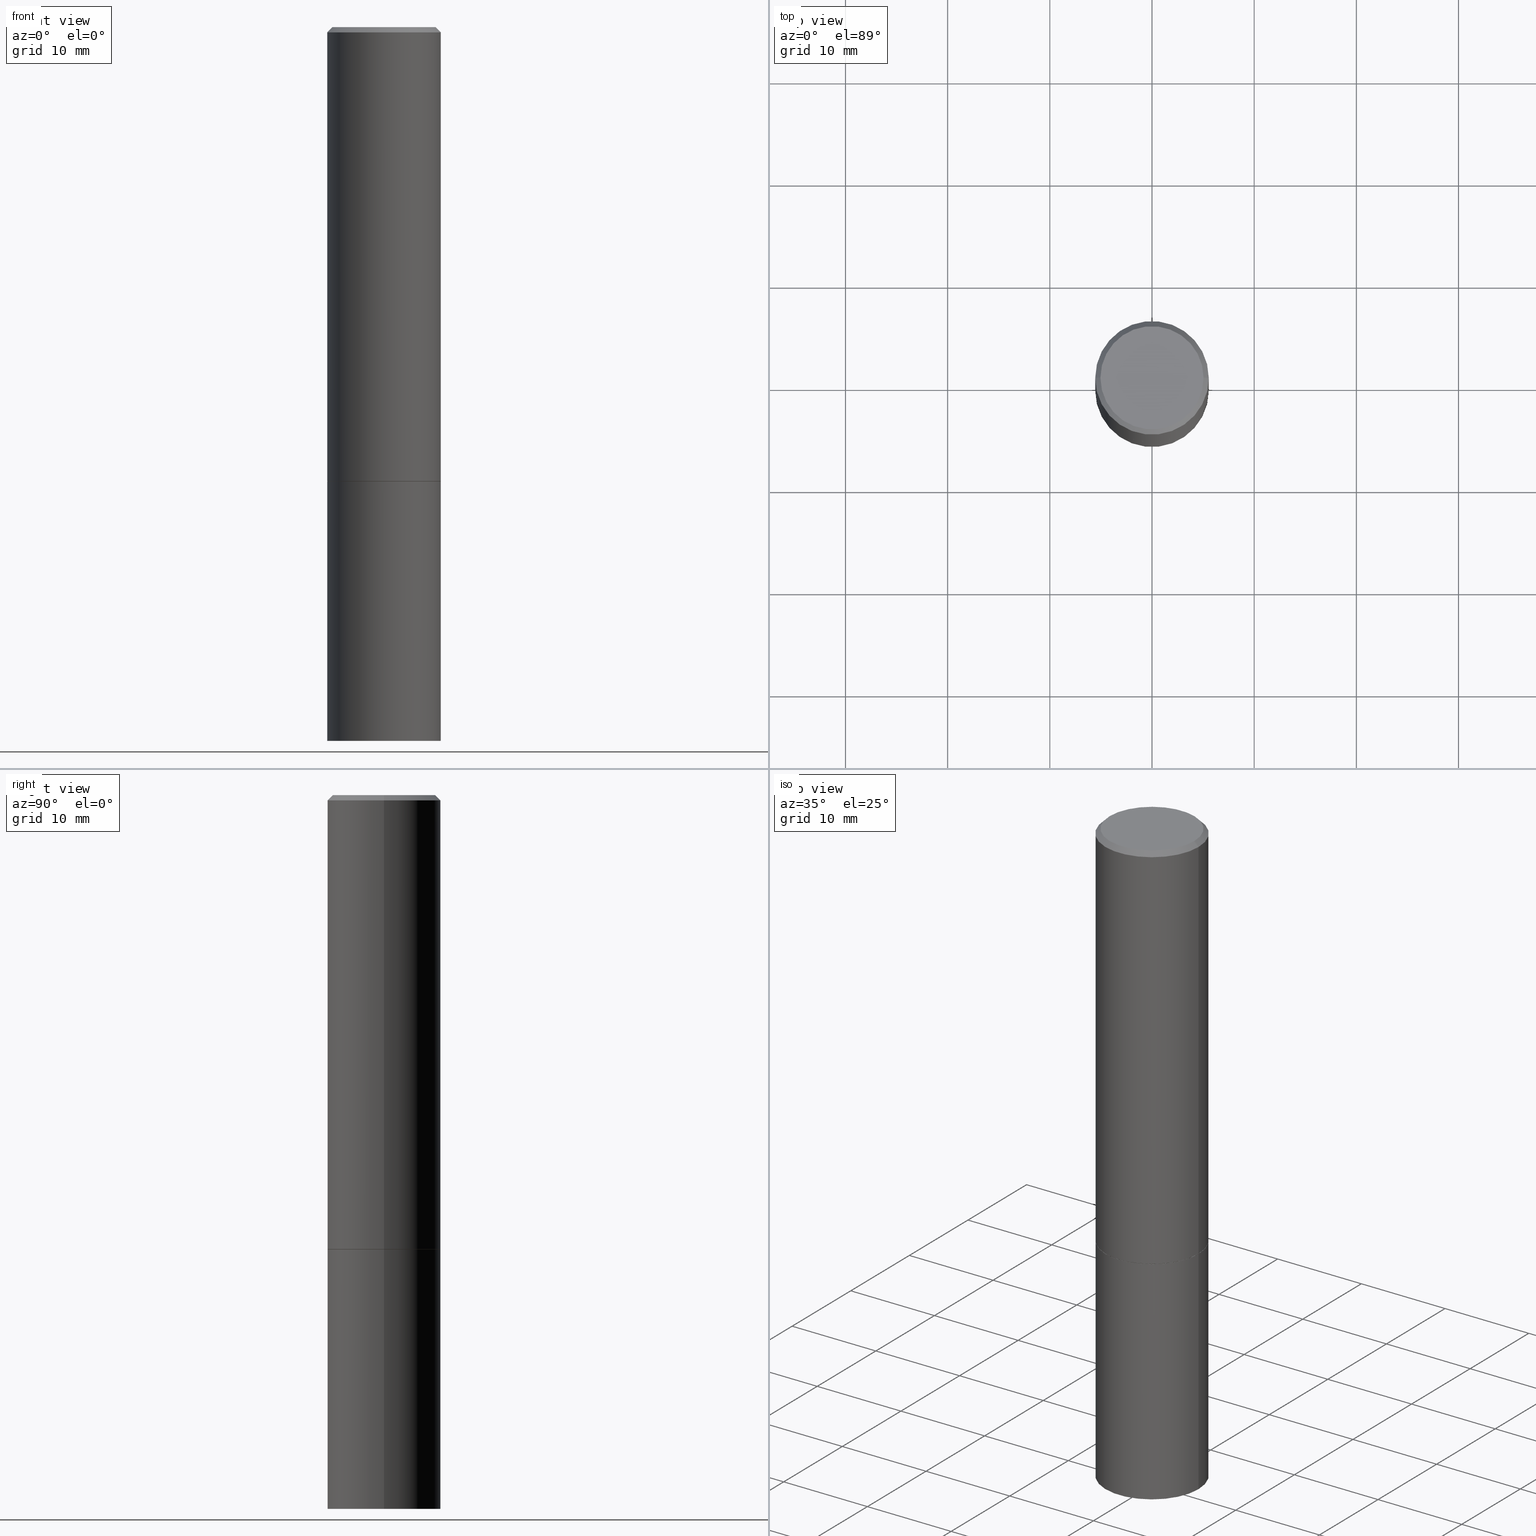
[diagram: canonical four-view strip — front | top / right | iso, engineering-drawing reading convention]
A machine part, canonical four-view strip (front | top / right | iso — engineering-drawing reading convention). The complete STEP part file that produces these views, byte-faithful:
ISO-10303-21;
HEADER;
FILE_DESCRIPTION (( 'STEP AP203' ),
    '1' );
FILE_NAME ('35487.STEP',
    '2024-02-27T18:49:43',
    ( '' ),
    ( '' ),
    'SwSTEP 2.0',
    'SolidWorks 2023',
    '' );
FILE_SCHEMA (( 'CONFIG_CONTROL_DESIGN' ));
ENDSEC;

DATA;
#1 = EDGE_CURVE ( 'NONE', #198, #201, #238, .T. ) ;
#2 = DIRECTION ( 'NONE',  ( 1.000000000000000000, -6.982962677686266711E-15, 0.000000000000000000 ) ) ;
#3 = DIRECTION ( 'NONE',  ( 0.000000000000000000, 0.000000000000000000, 1.000000000000000000 ) ) ;
#4 = DIRECTION ( 'NONE',  ( -2.445468806185136597E-29, 3.491481338843145583E-15, 1.000000000000000000 ) ) ;
#5 = PRODUCT_DEFINITION_FORMATION_WITH_SPECIFIED_SOURCE ( 'ANY', '', #168, .NOT_KNOWN. ) ;
#6 = CC_DESIGN_APPROVAL ( #297, ( #5 ) ) ;
#7 = DIRECTION ( 'NONE',  ( 1.000000000000000000, -6.982962677686266711E-15, 0.000000000000000000 ) ) ;
#8 = FACE_OUTER_BOUND ( 'NONE', #43, .T. ) ;
#9 = EDGE_CURVE ( 'NONE', #114, #78, #146, .T. ) ;
#10 = LINE ( 'NONE', #132, #239 ) ;
#11 = VECTOR ( 'NONE', #241, 39.37007874015748143 ) ;
#12 = EDGE_CURVE ( 'NONE', #106, #19, #165, .T. ) ;
#13 = CC_DESIGN_DATE_AND_TIME_ASSIGNMENT ( #28, #35, ( #24 ) ) ;
#14 = AXIS2_PLACEMENT_3D ( 'NONE', #98, #36, #237 ) ;
#15 = EDGE_LOOP ( 'NONE', ( #190, #91, #109, #60 ) ) ;
#16 = EDGE_CURVE ( 'NONE', #53, #221, #323, .T. ) ;
#17 = FACE_OUTER_BOUND ( 'NONE', #15, .T. ) ;
#18 = FACE_OUTER_BOUND ( 'NONE', #294, .T. ) ;
#19 = VERTEX_POINT ( 'NONE', #116 ) ;
#20 = DIRECTION ( 'NONE',  ( 1.000000000000000000, -6.982962677686262766E-15, 0.000000000000000000 ) ) ;
#21 = CLOSED_SHELL ( 'NONE', ( #219, #61, #187, #361 ) ) ;
#22 = APPROVAL_DATE_TIME ( #278, #242 ) ;
#23 = AXIS2_PLACEMENT_3D ( 'NONE', #69, #4, #343 ) ;
#24 = SECURITY_CLASSIFICATION ( '', '', #303 ) ;
#25 = VERTEX_POINT ( 'NONE', #57 ) ;
#26 = SHAPE_DEFINITION_REPRESENTATION ( #108, #115 ) ;
#27 = ORIENTED_EDGE ( 'NONE', *, *, #182, .F. ) ;
#28 = DATE_AND_TIME ( #312, #202 ) ;
#29 = APPROVAL_ROLE ( '' ) ;
#30 = LINE ( 'NONE', #345, #314 ) ;
#31 = PERSON_AND_ORGANIZATION ( #307, #295 ) ;
#32 = AXIS2_PLACEMENT_3D ( 'NONE', #184, #185, #181 ) ;
#33 = EDGE_CURVE ( 'NONE', #201, #304, #176, .T. ) ;
#34 = CARTESIAN_POINT ( 'NONE',  ( 1.527523085743937699E-15, 0.2187499999999903966, -2.750000000000000444 ) ) ;
#35 = DATE_TIME_ROLE ( 'classification_date' ) ;
#36 = DIRECTION ( 'NONE',  ( -2.445468806185136597E-29, 3.491481338843145583E-15, 1.000000000000000000 ) ) ;
#37 = CARTESIAN_POINT ( 'NONE',  ( 0.2177499999999999991, -7.630632466041687922E-15, -1.749999999999999556 ) ) ;
#38 = AXIS2_PLACEMENT_3D ( 'NONE', #317, #131, #155 ) ;
#39 = FACE_OUTER_BOUND ( 'NONE', #273, .T. ) ;
#40 = CYLINDRICAL_SURFACE ( 'NONE', #223, 0.2187499999999998890 ) ;
#41 = LENGTH_MEASURE_WITH_UNIT ( LENGTH_MEASURE( 0.02539999999999999897 ), #171 );
#42 = ADVANCED_FACE ( 'NONE', ( #366 ), #208, .F. ) ;
#43 = EDGE_LOOP ( 'NONE', ( #234, #204 ) ) ;
#44 = PRODUCT_RELATED_PRODUCT_CATEGORY ( 'detail', '', ( #168 ) ) ;
#45 = DIRECTION ( 'NONE',  ( 2.445468806185136597E-29, -3.491481338843145583E-15, -1.000000000000000000 ) ) ;
#46 = VECTOR ( 'NONE', #291, 39.37007874015748143 ) ;
#47 = LOCAL_TIME ( 13, 49, 43.00000000000000000, #58 ) ;
#48 = DATE_AND_TIME ( #325, #324 ) ;
#49 = CARTESIAN_POINT ( 'NONE',  ( -0.1987499999999997879, 1.422778645578575107E-15, -9.827974342635073886E-30 ) ) ;
#50 = ORIENTED_EDGE ( 'NONE', *, *, #251, .T. ) ;
#51 = FACE_OUTER_BOUND ( 'NONE', #229, .T. ) ;
#52 = DIRECTION ( 'NONE',  ( 0.7071067811866199593, -2.468850131083015945E-15, 0.7071067811864750752 ) ) ;
#53 = VERTEX_POINT ( 'NONE', #318 ) ;
#54 = CALENDAR_DATE ( 2024, 27, 2 ) ;
#55 = APPROVAL_PERSON_ORGANIZATION ( #330, #297, #63 ) ;
#56 = CC_DESIGN_PERSON_AND_ORGANIZATION_ASSIGNMENT ( #281, #358, ( #5 ) ) ;
#57 = CARTESIAN_POINT ( 'NONE',  ( -0.2187500000000000000, -1.533903009731541155E-15, -1.748999999999999888 ) ) ;
#58 = COORDINATED_UNIVERSAL_TIME_OFFSET ( 5, 0, .BEHIND. ) ;
#59 = PERSON_AND_ORGANIZATION ( #307, #295 ) ;
#60 = ORIENTED_EDGE ( 'NONE', *, *, #154, .F. ) ;
#61 = ADVANCED_FACE ( 'NONE', ( #8 ), #62, .T. ) ;
#62 = PLANE ( 'NONE',  #191 ) ;
#63 = APPROVAL_ROLE ( '' ) ;
#64 = FACE_OUTER_BOUND ( 'NONE', #85, .T. ) ;
#65 = CARTESIAN_POINT ( 'NONE',  ( 0.2187500000000000000, -7.634123947380530929E-15, -1.748999999999999888 ) ) ;
#66 = EDGE_CURVE ( 'NONE', #221, #53, #157, .T. ) ;
#67 = CARTESIAN_POINT ( 'NONE',  ( 4.279570410823988484E-29, -6.110092342975504671E-15, -1.750000000000000000 ) ) ;
#68 = CIRCLE ( 'NONE', #111, 0.2187499999999997780 ) ;
#69 = CARTESIAN_POINT ( 'NONE',  ( 4.279570410823988484E-29, -6.110092342975503093E-15, -1.749999999999999556 ) ) ;
#70 = CARTESIAN_POINT ( 'NONE',  ( 0.000000000000000000, 0.000000000000000000, 0.000000000000000000 ) ) ;
#71 = VECTOR ( 'NONE', #52, 39.37007874015748143 ) ;
#72 = AXIS2_PLACEMENT_3D ( 'NONE', #268, #352, #110 ) ;
#73 = CARTESIAN_POINT ( 'NONE',  ( 4.279570410823988484E-29, -6.110092342975503093E-15, -1.749999999999999556 ) ) ;
#74 = EDGE_CURVE ( 'NONE', #19, #106, #269, .T. ) ;
#75 = ORIENTED_EDGE ( 'NONE', *, *, #127, .F. ) ;
#76 =( NAMED_UNIT ( * ) SI_UNIT ( $, .STERADIAN. ) SOLID_ANGLE_UNIT ( ) );
#77 = CIRCLE ( 'NONE', #250, 0.2177499999999999991 ) ;
#78 = VERTEX_POINT ( 'NONE', #65 ) ;
#79 = APPROVAL_PERSON_ORGANIZATION ( #148, #242, #334 ) ;
#80 = DIRECTION ( 'NONE',  ( -2.445468806185136877E-29, 3.491481338843145188E-15, 1.000000000000000000 ) ) ;
#81 = ORIENTED_EDGE ( 'NONE', *, *, #102, .T. ) ;
#82 = EDGE_CURVE ( 'NONE', #25, #78, #264, .T. ) ;
#83 =( NAMED_UNIT ( * ) PLANE_ANGLE_UNIT ( ) SI_UNIT ( $, .RADIAN. ) );
#84 = CARTESIAN_POINT ( 'NONE',  ( 0.000000000000000000, 0.000000000000000000, 0.000000000000000000 ) ) ;
#85 = EDGE_LOOP ( 'NONE', ( #310, #354, #105, #138 ) ) ;
#86 = CLOSED_SHELL ( 'NONE', ( #141, #159, #316, #137, #199, #149, #169, #42 ) ) ;
#87 = AXIS2_PLACEMENT_3D ( 'NONE', #126, #152, #287 ) ;
#88 = AXIS2_PLACEMENT_3D ( 'NONE', #299, #347, #104 ) ;
#89 = PERSON_AND_ORGANIZATION ( #307, #295 ) ;
#90 = EDGE_CURVE ( 'NONE', #198, #145, #288, .T. ) ;
#91 = ORIENTED_EDGE ( 'NONE', *, *, #82, .T. ) ;
#92 = APPROVAL_STATUS ( 'not_yet_approved' ) ;
#93 = CARTESIAN_POINT ( 'NONE',  ( 4.890937612370287172E-31, -6.982962677686310098E-17, -0.02000000000000005593 ) ) ;
#94 = APPROVAL ( #178, 'UNSPECIFIED' ) ;
#95 = CARTESIAN_POINT ( 'NONE',  ( -0.2187500000000000000, -6.301520777921857714E-15, -1.750000000000000000 ) ) ;
#96 = FACE_OUTER_BOUND ( 'NONE', #224, .T. ) ;
#97 = PERSON_AND_ORGANIZATION_ROLE ( 'creator' ) ;
#98 = CARTESIAN_POINT ( 'NONE',  ( 4.890937612370287172E-31, -6.982962677686310098E-17, -0.02000000000000005593 ) ) ;
#99 = DIRECTION ( 'NONE',  ( 1.000000000000000000, -6.982962677686265922E-15, 4.876176775795935793E-29 ) ) ;
#100 = AXIS2_PLACEMENT_3D ( 'NONE', #140, #320, #113 ) ;
#101 = CARTESIAN_POINT ( 'NONE',  ( 4.277124942017804002E-29, -6.106600861636660875E-15, -1.748999999999999888 ) ) ;
#102 = EDGE_CURVE ( 'NONE', #145, #304, #68, .T. ) ;
#103 = EDGE_LOOP ( 'NONE', ( #245, #282 ) ) ;
#104 = DIRECTION ( 'NONE',  ( -1.000000000000000000, 6.982962677686265922E-15, -4.876176775795935793E-29 ) ) ;
#105 = ORIENTED_EDGE ( 'NONE', *, *, #9, .T. ) ;
#106 = VERTEX_POINT ( 'NONE', #95 ) ;
#107 = AXIS2_PLACEMENT_3D ( 'NONE', #279, #170, #20 ) ;
#108 = PRODUCT_DEFINITION_SHAPE ( 'NONE', 'NONE',  #217 ) ;
#109 = ORIENTED_EDGE ( 'NONE', *, *, #267, .T. ) ;
#110 = DIRECTION ( 'NONE',  ( 1.000000000000000000, -6.982962677686266711E-15, 4.876176775795935232E-29 ) ) ;
#111 = AXIS2_PLACEMENT_3D ( 'NONE', #93, #339, #289 ) ;
#112 = EDGE_LOOP ( 'NONE', ( #194, #350, #326, #254 ) ) ;
#113 = DIRECTION ( 'NONE',  ( 1.000000000000000000, -6.982962677686266711E-15, 4.876176775795936353E-29 ) ) ;
#114 = VERTEX_POINT ( 'NONE', #37 ) ;
#115 = ADVANCED_BREP_SHAPE_REPRESENTATION ( '35487', ( #351, #124, #129 ), #276 ) ;
#116 = CARTESIAN_POINT ( 'NONE',  ( 0.2187500000000000000, -7.637615428719375514E-15, -1.750000000000000000 ) ) ;
#117 = PERSON_AND_ORGANIZATION_ROLE ( 'classification_officer' ) ;
#118 = ORIENTED_EDGE ( 'NONE', *, *, #216, .T. ) ;
#119 = AXIS2_PLACEMENT_3D ( 'NONE', #84, #147, #277 ) ;
#120 = AXIS2_PLACEMENT_3D ( 'NONE', #192, #45, #195 ) ;
#121 = COORDINATED_UNIVERSAL_TIME_OFFSET ( 5, 0, .BEHIND. ) ;
#122 = DATE_AND_TIME ( #365, #144 ) ;
#123 = DIRECTION ( 'NONE',  ( -2.445468806185136597E-29, 3.491481338843145583E-15, 1.000000000000000000 ) ) ;
#124 = MANIFOLD_SOLID_BREP ( 'Body-Move/Copy2[2]', #86 ) ;
#125 = CARTESIAN_POINT ( 'NONE',  ( 4.279570410823988484E-29, -6.110092342975503093E-15, -1.749999999999999556 ) ) ;
#126 = CARTESIAN_POINT ( 'NONE',  ( 6.725039217009124520E-29, -9.601573681818649859E-15, -2.750000000000000000 ) ) ;
#127 = EDGE_CURVE ( 'NONE', #53, #19, #30, .T. ) ;
#128 = AXIS2_PLACEMENT_3D ( 'NONE', #308, #172, #275 ) ;
#129 = AXIS2_PLACEMENT_3D ( 'NONE', #359, #3, #286 ) ;
#130 = DIRECTION ( 'NONE',  ( 2.438088387897960049E-29, -3.491481338843145188E-15, -1.000000000000000000 ) ) ;
#131 = DIRECTION ( 'NONE',  ( -2.445468806185136597E-29, 3.491481338843145583E-15, 1.000000000000000000 ) ) ;
#132 = CARTESIAN_POINT ( 'NONE',  ( -0.2177499999999999991, -4.562885535857884945E-15, -1.749999999999999556 ) ) ;
#133 = AXIS2_PLACEMENT_3D ( 'NONE', #183, #123, #7 ) ;
#134 = CC_DESIGN_SECURITY_CLASSIFICATION ( #24, ( #5 ) ) ;
#135 = DIRECTION ( 'NONE',  ( -2.445468806185136597E-29, 3.491481338843145583E-15, 1.000000000000000000 ) ) ;
#136 = EDGE_LOOP ( 'NONE', ( #300, #50, #196, #75 ) ) ;
#137 = ADVANCED_FACE ( 'NONE', ( #265 ), #193, .T. ) ;
#138 = ORIENTED_EDGE ( 'NONE', *, *, #82, .F. ) ;
#139 = ORIENTED_EDGE ( 'NONE', *, *, #1, .F. ) ;
#140 = CARTESIAN_POINT ( 'NONE',  ( 0.000000000000000000, 0.000000000000000000, 0.000000000000000000 ) ) ;
#141 = ADVANCED_FACE ( 'NONE', ( #340 ), #319, .T. ) ;
#142 = ORIENTED_EDGE ( 'NONE', *, *, #280, .T. ) ;
#143 = DIRECTION ( 'NONE',  ( 1.000000000000000000, -6.982962677686267499E-15, 0.000000000000000000 ) ) ;
#144 = LOCAL_TIME ( 13, 49, 43.00000000000000000, #259 ) ;
#145 = VERTEX_POINT ( 'NONE', #315 ) ;
#146 = LINE ( 'NONE', #360, #71 ) ;
#147 = DIRECTION ( 'NONE',  ( -2.445468806185136597E-29, 3.491481338843145583E-15, 1.000000000000000000 ) ) ;
#148 = PERSON_AND_ORGANIZATION ( #307, #295 ) ;
#149 = ADVANCED_FACE ( 'NONE', ( #64 ), #162, .T. ) ;
#150 = DIRECTION ( 'NONE',  ( 0.7071067811865464625, -7.319954787623252890E-15, -0.7071067811865486830 ) ) ;
#151 = AXIS2_PLACEMENT_3D ( 'NONE', #125, #284, #2 ) ;
#152 = DIRECTION ( 'NONE',  ( -2.445468806185136597E-29, 3.491481338843145583E-15, 1.000000000000000000 ) ) ;
#153 = MECHANICAL_CONTEXT ( 'NONE', #226, 'mechanical' ) ;
#154 = EDGE_CURVE ( 'NONE', #304, #145, #246, .T. ) ;
#155 = DIRECTION ( 'NONE',  ( 1.000000000000000000, -6.982962677686266711E-15, 4.876176775795935793E-29 ) ) ;
#156 = CARTESIAN_POINT ( 'NONE',  ( 0.2187499999999997780, -1.570563563789384053E-15, -0.02000000000000005593 ) ) ;
#157 = CIRCLE ( 'NONE', #87, 0.2187500000000000000 ) ;
#158 = DIRECTION ( 'NONE',  ( 2.438088387897960049E-29, -3.491481338843145188E-15, -1.000000000000000000 ) ) ;
#159 = ADVANCED_FACE ( 'NONE', ( #313 ), #209, .T. ) ;
#160 = CARTESIAN_POINT ( 'NONE',  ( -0.2187500000000000000, 1.554312234475219157E-15, -1.076017050993260622E-29 ) ) ;
#161 = LINE ( 'NONE', #346, #298 ) ;
#162 = CONICAL_SURFACE ( 'NONE', #133, 0.2177499999999999991, 0.7853981633975507526 ) ;
#163 = EDGE_LOOP ( 'NONE', ( #336, #142, #329, #215 ) ) ;
#164 = CC_DESIGN_PERSON_AND_ORGANIZATION_ASSIGNMENT ( #89, #203, ( #168 ) ) ;
#165 = CIRCLE ( 'NONE', #128, 0.2187500000000000000 ) ;
#166 = CYLINDRICAL_SURFACE ( 'NONE', #327, 0.2187500000000000000 ) ;
#167 = VECTOR ( 'NONE', #293, 39.37007874015748143 ) ;
#168 = PRODUCT ( '35487', '35487', '', ( #153 ) ) ;
#169 = ADVANCED_FACE ( 'NONE', ( #39 ), #186, .F. ) ;
#170 = DIRECTION ( 'NONE',  ( -2.445468806185136597E-29, 3.491481338843145583E-15, 1.000000000000000000 ) ) ;
#171 =( LENGTH_UNIT ( ) NAMED_UNIT ( * ) SI_UNIT ( $, .METRE. ) );
#172 = DIRECTION ( 'NONE',  ( -2.445468806185136597E-29, 3.491481338843145583E-15, 1.000000000000000000 ) ) ;
#173 = APPROVAL_PERSON_ORGANIZATION ( #59, #94, #29 ) ;
#174 = ORIENTED_EDGE ( 'NONE', *, *, #12, .T. ) ;
#175 = CALENDAR_DATE ( 2024, 27, 2 ) ;
#176 = LINE ( 'NONE', #362, #11 ) ;
#177 = PERSON_AND_ORGANIZATION_ROLE ( 'design_supplier' ) ;
#178 = APPROVAL_STATUS ( 'not_yet_approved' ) ;
#179 = ORIENTED_EDGE ( 'NONE', *, *, #311, .F. ) ;
#180 = PERSON_AND_ORGANIZATION ( #307, #295 ) ;
#181 = DIRECTION ( 'NONE',  ( 1.000000000000000000, -6.982962677686267499E-15, 0.000000000000000000 ) ) ;
#182 = EDGE_CURVE ( 'NONE', #257, #114, #200, .T. ) ;
#183 = CARTESIAN_POINT ( 'NONE',  ( 4.279570410823988484E-29, -6.110092342975503093E-15, -1.749999999999999556 ) ) ;
#184 = CARTESIAN_POINT ( 'NONE',  ( 4.277124942017804002E-29, -6.106600861636660875E-15, -1.748999999999999888 ) ) ;
#185 = DIRECTION ( 'NONE',  ( -2.445468806185136597E-29, 3.491481338843145583E-15, 1.000000000000000000 ) ) ;
#186 = PLANE ( 'NONE',  #306 ) ;
#187 = ADVANCED_FACE ( 'NONE', ( #96 ), #328, .F. ) ;
#188 = UNCERTAINTY_MEASURE_WITH_UNIT (LENGTH_MEASURE( 1.000000000000000082E-05 ), #227, 'distance_accuracy_value', 'NONE');
#189 = CARTESIAN_POINT ( 'NONE',  ( -0.2177499999999999991, -4.557587081509664120E-15, -1.749999999999999556 ) ) ;
#190 = ORIENTED_EDGE ( 'NONE', *, *, #280, .F. ) ;
#191 = AXIS2_PLACEMENT_3D ( 'NONE', #34, #158, #344 ) ;
#192 = CARTESIAN_POINT ( 'NONE',  ( 4.890937612370287172E-31, -6.982962677686310098E-17, -0.02000000000000005593 ) ) ;
#193 = CONICAL_SURFACE ( 'NONE', #335, 0.2187499999999997780, 0.7853981633974467247 ) ;
#194 = ORIENTED_EDGE ( 'NONE', *, *, #90, .F. ) ;
#195 = DIRECTION ( 'NONE',  ( -1.000000000000000000, 6.982962677686266711E-15, 0.000000000000000000 ) ) ;
#196 = ORIENTED_EDGE ( 'NONE', *, *, #74, .F. ) ;
#197 = DATE_TIME_ROLE ( 'creation_date' ) ;
#198 = VERTEX_POINT ( 'NONE', #255 ) ;
#199 = ADVANCED_FACE ( 'NONE', ( #17 ), #40, .T. ) ;
#200 = CIRCLE ( 'NONE', #23, 0.2177499999999999991 ) ;
#201 = VERTEX_POINT ( 'NONE', #49 ) ;
#202 = LOCAL_TIME ( 13, 49, 43.00000000000000000, #121 ) ;
#203 = PERSON_AND_ORGANIZATION_ROLE ( 'design_owner' ) ;
#204 = ORIENTED_EDGE ( 'NONE', *, *, #66, .F. ) ;
#205 = DIRECTION ( 'NONE',  ( -2.445468806185136597E-29, 3.491481338843145583E-15, 1.000000000000000000 ) ) ;
#206 = COORDINATED_UNIVERSAL_TIME_OFFSET ( 5, 0, .BEHIND. ) ;
#207 = DIRECTION ( 'NONE',  ( 1.000000000000000000, -6.982962677686267499E-15, 0.000000000000000000 ) ) ;
#208 = PLANE ( 'NONE',  #363 ) ;
#209 = CYLINDRICAL_SURFACE ( 'NONE', #38, 0.2187499999999998890 ) ;
#210 = DIRECTION ( 'NONE',  ( 2.445468806185136597E-29, -3.491481338843145583E-15, -1.000000000000000000 ) ) ;
#211 = CARTESIAN_POINT ( 'NONE',  ( -0.2187499999999997780, 1.457693458967006164E-15, -0.02000000000000005593 ) ) ;
#212 = CC_DESIGN_PERSON_AND_ORGANIZATION_ASSIGNMENT ( #31, #117, ( #24 ) ) ;
#213 = COORDINATED_UNIVERSAL_TIME_OFFSET ( 5, 0, .BEHIND. ) ;
#214 = CARTESIAN_POINT ( 'NONE',  ( -0.2187499999999998890, 1.554312234475218368E-15, -1.076017050993260062E-29 ) ) ;
#215 = ORIENTED_EDGE ( 'NONE', *, *, #267, .F. ) ;
#216 = EDGE_CURVE ( 'NONE', #257, #25, #10, .T. ) ;
#217 = PRODUCT_DEFINITION ( 'UNKNOWN', '', #5, #332 ) ;
#218 = CIRCLE ( 'NONE', #355, 0.2187500000000000000 ) ;
#219 = ADVANCED_FACE ( 'NONE', ( #244 ), #296, .T. ) ;
#220 = CARTESIAN_POINT ( 'NONE',  ( -0.2187500000000000000, -6.301520777921857714E-15, -2.750000000000000000 ) ) ;
#221 = VERTEX_POINT ( 'NONE', #220 ) ;
#222 = DIRECTION ( 'NONE',  ( -0.7071067811866199593, 7.493145998870616062E-15, 0.7071067811864750752 ) ) ;
#223 = AXIS2_PLACEMENT_3D ( 'NONE', #70, #135, #274 ) ;
#224 = EDGE_LOOP ( 'NONE', ( #258, #174 ) ) ;
#225 = DATE_AND_TIME ( #54, #47 ) ;
#226 = APPLICATION_CONTEXT ( 'configuration controlled 3d designs of mechanical parts and assemblies' ) ;
#227 =( CONVERSION_BASED_UNIT ( 'INCH', #41 ) LENGTH_UNIT ( ) NAMED_UNIT ( #305 ) );
#228 = ORIENTED_EDGE ( 'NONE', *, *, #90, .T. ) ;
#229 = EDGE_LOOP ( 'NONE', ( #357, #333, #252, #348 ) ) ;
#230 = APPROVAL_STATUS ( 'not_yet_approved' ) ;
#231 = CC_DESIGN_DATE_AND_TIME_ASSIGNMENT ( #48, #197, ( #217 ) ) ;
#232 = APPLICATION_PROTOCOL_DEFINITION ( 'international standard', 'config_control_design', 1994, #226 ) ;
#233 = AXIS2_PLACEMENT_3D ( 'NONE', #67, #205, #207 ) ;
#234 = ORIENTED_EDGE ( 'NONE', *, *, #16, .F. ) ;
#235 = CARTESIAN_POINT ( 'NONE',  ( 4.279570410823988484E-29, -6.110092342975503093E-15, -1.749999999999999556 ) ) ;
#236 = CARTESIAN_POINT ( 'NONE',  ( 1.387863832190143852E-15, 0.1987499999999997879, -6.939319160950744899E-16 ) ) ;
#237 = DIRECTION ( 'NONE',  ( 1.000000000000000000, -6.982962677686266711E-15, 0.000000000000000000 ) ) ;
#238 = CIRCLE ( 'NONE', #119, 0.1987499999999997879 ) ;
#239 = VECTOR ( 'NONE', #222, 39.37007874015748143 ) ;
#240 = CARTESIAN_POINT ( 'NONE',  ( 4.890937612370287172E-31, -6.982962677686310098E-17, -0.02000000000000005593 ) ) ;
#241 = DIRECTION ( 'NONE',  ( -0.7071067811865464625, 2.468850131082245228E-15, -0.7071067811865486830 ) ) ;
#242 = APPROVAL ( #230, 'UNSPECIFIED' ) ;
#243 = APPLICATION_CONTEXT ( 'configuration controlled 3d designs of mechanical parts and assemblies' ) ;
#244 = FACE_OUTER_BOUND ( 'NONE', #136, .T. ) ;
#245 = ORIENTED_EDGE ( 'NONE', *, *, #341, .T. ) ;
#246 = CIRCLE ( 'NONE', #14, 0.2187499999999997780 ) ;
#247 = DIRECTION ( 'NONE',  ( -2.445468806185136597E-29, 3.491481338843145583E-15, 1.000000000000000000 ) ) ;
#248 = EDGE_LOOP ( 'NONE', ( #256, #118, #331, #302 ) ) ;
#249 = CONICAL_SURFACE ( 'NONE', #120, 0.2187499999999997780, 0.7853981633974467247 ) ;
#250 = AXIS2_PLACEMENT_3D ( 'NONE', #73, #247, #266 ) ;
#251 = EDGE_CURVE ( 'NONE', #221, #106, #356, .T. ) ;
#252 = ORIENTED_EDGE ( 'NONE', *, *, #127, .T. ) ;
#253 = CARTESIAN_POINT ( 'NONE',  ( 0.000000000000000000, 0.000000000000000000, 0.000000000000000000 ) ) ;
#254 = ORIENTED_EDGE ( 'NONE', *, *, #154, .T. ) ;
#255 = CARTESIAN_POINT ( 'NONE',  ( 0.1987499999999997879, -1.467043770423237466E-15, 9.982525199991775287E-30 ) ) ;
#256 = ORIENTED_EDGE ( 'NONE', *, *, #311, .T. ) ;
#257 = VERTEX_POINT ( 'NONE', #189 ) ;
#258 = ORIENTED_EDGE ( 'NONE', *, *, #74, .T. ) ;
#259 = COORDINATED_UNIVERSAL_TIME_OFFSET ( 5, 0, .BEHIND. ) ;
#260 = DIRECTION ( 'NONE',  ( -2.438088387897960049E-29, 3.491481338843145188E-15, 1.000000000000000000 ) ) ;
#261 = DIRECTION ( 'NONE',  ( -2.445468806185136877E-29, 3.491481338843145188E-15, 1.000000000000000000 ) ) ;
#262 = DIRECTION ( 'NONE',  ( -1.000000000000000000, 6.982962677686265922E-15, -4.876176775795935793E-29 ) ) ;
#263 = DIRECTION ( 'NONE',  ( -1.000000000000000000, 6.982962677686266711E-15, 0.000000000000000000 ) ) ;
#264 = CIRCLE ( 'NONE', #32, 0.2187500000000000000 ) ;
#265 = FACE_OUTER_BOUND ( 'NONE', #112, .T. ) ;
#266 = DIRECTION ( 'NONE',  ( 1.000000000000000000, -6.982962677686266711E-15, 0.000000000000000000 ) ) ;
#267 = EDGE_CURVE ( 'NONE', #78, #145, #161, .T. ) ;
#268 = CARTESIAN_POINT ( 'NONE',  ( 0.000000000000000000, 0.000000000000000000, 0.000000000000000000 ) ) ;
#269 = CIRCLE ( 'NONE', #233, 0.2187500000000000000 ) ;
#270 = CIRCLE ( 'NONE', #100, 0.1987499999999997879 ) ;
#271 = DIRECTION ( 'NONE',  ( -2.445468806185136597E-29, 3.491481338843145583E-15, 1.000000000000000000 ) ) ;
#272 = DIRECTION ( 'NONE',  ( -2.445468806185136597E-29, 3.491481338843145583E-15, 1.000000000000000000 ) ) ;
#273 = EDGE_LOOP ( 'NONE', ( #179, #27 ) ) ;
#274 = DIRECTION ( 'NONE',  ( 1.000000000000000000, -6.982962677686266711E-15, 4.876176775795935793E-29 ) ) ;
#275 = DIRECTION ( 'NONE',  ( 1.000000000000000000, -6.982962677686267499E-15, 0.000000000000000000 ) ) ;
#276 =( GEOMETRIC_REPRESENTATION_CONTEXT ( 3 ) GLOBAL_UNCERTAINTY_ASSIGNED_CONTEXT ( ( #188 ) ) GLOBAL_UNIT_ASSIGNED_CONTEXT ( ( #227, #83, #76 ) ) REPRESENTATION_CONTEXT ( 'NONE', 'WORKASPACE' ) );
#277 = DIRECTION ( 'NONE',  ( 1.000000000000000000, -6.982962677686266711E-15, 4.876176775795936353E-29 ) ) ;
#278 = DATE_AND_TIME ( #175, #283 ) ;
#279 = CARTESIAN_POINT ( 'NONE',  ( 6.725039217009124520E-29, -9.601573681818649859E-15, -2.750000000000000000 ) ) ;
#280 = EDGE_CURVE ( 'NONE', #25, #304, #321, .T. ) ;
#281 = PERSON_AND_ORGANIZATION ( #307, #295 ) ;
#282 = ORIENTED_EDGE ( 'NONE', *, *, #1, .T. ) ;
#283 = LOCAL_TIME ( 13, 49, 43.00000000000000000, #206 ) ;
#284 = DIRECTION ( 'NONE',  ( -2.445468806185136597E-29, 3.491481338843145583E-15, 1.000000000000000000 ) ) ;
#285 = PERSON_AND_ORGANIZATION ( #307, #295 ) ;
#286 = DIRECTION ( 'NONE',  ( 1.000000000000000000, 0.000000000000000000, 0.000000000000000000 ) ) ;
#287 = DIRECTION ( 'NONE',  ( 1.000000000000000000, -6.982962677686262766E-15, 0.000000000000000000 ) ) ;
#288 = LINE ( 'NONE', #156, #349 ) ;
#289 = DIRECTION ( 'NONE',  ( 1.000000000000000000, -6.982962677686266711E-15, 0.000000000000000000 ) ) ;
#290 = CC_DESIGN_APPROVAL ( #242, ( #24 ) ) ;
#291 = DIRECTION ( 'NONE',  ( -2.445468806185136877E-29, 3.491481338843145188E-15, 1.000000000000000000 ) ) ;
#292 = EDGE_CURVE ( 'NONE', #78, #25, #218, .T. ) ;
#293 = DIRECTION ( 'NONE',  ( -2.445468806185136877E-29, 3.491481338843145188E-15, 1.000000000000000000 ) ) ;
#294 = EDGE_LOOP ( 'NONE', ( #139, #228, #81, #322 ) ) ;
#295 = ORGANIZATION ( 'UNSPECIFIED', 'UNSPECIFIED', '' ) ;
#296 = CYLINDRICAL_SURFACE ( 'NONE', #72, 0.2187500000000000000 ) ;
#297 = APPROVAL ( #92, 'UNSPECIFIED' ) ;
#298 = VECTOR ( 'NONE', #80, 39.37007874015748143 ) ;
#299 = CARTESIAN_POINT ( 'NONE',  ( 1.527523085743913244E-15, 0.2187499999999938660, -1.750000000000000666 ) ) ;
#300 = ORIENTED_EDGE ( 'NONE', *, *, #16, .T. ) ;
#301 = DIRECTION ( 'NONE',  ( 1.000000000000000000, -6.982962677686266711E-15, 4.876176775795935232E-29 ) ) ;
#302 = ORIENTED_EDGE ( 'NONE', *, *, #9, .F. ) ;
#303 = SECURITY_CLASSIFICATION_LEVEL ( 'unclassified' ) ;
#304 = VERTEX_POINT ( 'NONE', #211 ) ;
#305 = DIMENSIONAL_EXPONENTS ( 1.000000000000000000, 0.000000000000000000, 0.000000000000000000, 0.000000000000000000, 0.000000000000000000, 0.000000000000000000, 0.000000000000000000 ) ;
#306 = AXIS2_PLACEMENT_3D ( 'NONE', #235, #260, #99 ) ;
#307 = PERSON ( 'UNSPECIFIED', 'UNSPECIFIED', 'UNSPECIFIED', ('UNSPECIFIED'), ('UNSPECIFIED'), ('UNSPECIFIED') ) ;
#308 = CARTESIAN_POINT ( 'NONE',  ( 4.279570410823988484E-29, -6.110092342975504671E-15, -1.750000000000000000 ) ) ;
#309 = APPLICATION_PROTOCOL_DEFINITION ( 'international standard', 'config_control_design', 1994, #243 ) ;
#310 = ORIENTED_EDGE ( 'NONE', *, *, #216, .F. ) ;
#311 = EDGE_CURVE ( 'NONE', #114, #257, #77, .T. ) ;
#312 = CALENDAR_DATE ( 2024, 27, 2 ) ;
#313 = FACE_OUTER_BOUND ( 'NONE', #163, .T. ) ;
#314 = VECTOR ( 'NONE', #261, 39.37007874015748143 ) ;
#315 = CARTESIAN_POINT ( 'NONE',  ( 0.2187499999999997780, -1.570563563789384053E-15, -0.02000000000000005593 ) ) ;
#316 = ADVANCED_FACE ( 'NONE', ( #18 ), #249, .T. ) ;
#317 = CARTESIAN_POINT ( 'NONE',  ( 0.000000000000000000, 0.000000000000000000, 0.000000000000000000 ) ) ;
#318 = CARTESIAN_POINT ( 'NONE',  ( 0.2187500000000000000, -1.112909676756251991E-14, -2.750000000000000000 ) ) ;
#319 = CONICAL_SURFACE ( 'NONE', #151, 0.2177499999999999991, 0.7853981633975507526 ) ;
#320 = DIRECTION ( 'NONE',  ( -2.445468806185136597E-29, 3.491481338843145583E-15, 1.000000000000000000 ) ) ;
#321 = LINE ( 'NONE', #214, #46 ) ;
#322 = ORIENTED_EDGE ( 'NONE', *, *, #33, .F. ) ;
#323 = CIRCLE ( 'NONE', #107, 0.2187500000000000000 ) ;
#324 = LOCAL_TIME ( 13, 49, 43.00000000000000000, #213 ) ;
#325 = CALENDAR_DATE ( 2024, 27, 2 ) ;
#326 = ORIENTED_EDGE ( 'NONE', *, *, #33, .T. ) ;
#327 = AXIS2_PLACEMENT_3D ( 'NONE', #253, #271, #301 ) ;
#328 = PLANE ( 'NONE',  #88 ) ;
#329 = ORIENTED_EDGE ( 'NONE', *, *, #102, .F. ) ;
#330 = PERSON_AND_ORGANIZATION ( #307, #295 ) ;
#331 = ORIENTED_EDGE ( 'NONE', *, *, #292, .F. ) ;
#332 = DESIGN_CONTEXT ( 'detailed design', #243, 'design' ) ;
#333 = ORIENTED_EDGE ( 'NONE', *, *, #66, .T. ) ;
#334 = APPROVAL_ROLE ( '' ) ;
#335 = AXIS2_PLACEMENT_3D ( 'NONE', #240, #210, #263 ) ;
#336 = ORIENTED_EDGE ( 'NONE', *, *, #292, .T. ) ;
#337 = APPROVAL_DATE_TIME ( #225, #297 ) ;
#338 = APPROVAL_DATE_TIME ( #122, #94 ) ;
#339 = DIRECTION ( 'NONE',  ( -2.445468806185136597E-29, 3.491481338843145583E-15, 1.000000000000000000 ) ) ;
#340 = FACE_OUTER_BOUND ( 'NONE', #248, .T. ) ;
#341 = EDGE_CURVE ( 'NONE', #201, #198, #270, .T. ) ;
#342 = CC_DESIGN_APPROVAL ( #94, ( #217 ) ) ;
#343 = DIRECTION ( 'NONE',  ( 1.000000000000000000, -6.982962677686266711E-15, 0.000000000000000000 ) ) ;
#344 = DIRECTION ( 'NONE',  ( -1.000000000000000000, 6.982962677686265922E-15, -4.876176775795935793E-29 ) ) ;
#345 = CARTESIAN_POINT ( 'NONE',  ( 0.2187500000000000000, -1.527523085743870843E-15, 1.066663669705360885E-29 ) ) ;
#346 = CARTESIAN_POINT ( 'NONE',  ( 0.2187499999999998890, -1.527523085743870054E-15, 1.066663669705360464E-29 ) ) ;
#347 = DIRECTION ( 'NONE',  ( 2.438088387897960049E-29, -3.491481338843145188E-15, -1.000000000000000000 ) ) ;
#348 = ORIENTED_EDGE ( 'NONE', *, *, #12, .F. ) ;
#349 = VECTOR ( 'NONE', #150, 39.37007874015748143 ) ;
#350 = ORIENTED_EDGE ( 'NONE', *, *, #341, .F. ) ;
#351 = MANIFOLD_SOLID_BREP ( 'Body-Move/Copy2[1]', #21 ) ;
#352 = DIRECTION ( 'NONE',  ( -2.445468806185136597E-29, 3.491481338843145583E-15, 1.000000000000000000 ) ) ;
#353 = CC_DESIGN_PERSON_AND_ORGANIZATION_ASSIGNMENT ( #285, #177, ( #5 ) ) ;
#354 = ORIENTED_EDGE ( 'NONE', *, *, #182, .T. ) ;
#355 = AXIS2_PLACEMENT_3D ( 'NONE', #101, #272, #143 ) ;
#356 = LINE ( 'NONE', #160, #167 ) ;
#357 = ORIENTED_EDGE ( 'NONE', *, *, #251, .F. ) ;
#358 = PERSON_AND_ORGANIZATION_ROLE ( 'creator' ) ;
#359 = CARTESIAN_POINT ( 'NONE',  ( 0.000000000000000000, 0.000000000000000000, 0.000000000000000000 ) ) ;
#360 = CARTESIAN_POINT ( 'NONE',  ( 0.2177499999999999991, -7.630632466041687922E-15, -1.749999999999999556 ) ) ;
#361 = ADVANCED_FACE ( 'NONE', ( #51 ), #166, .T. ) ;
#362 = CARTESIAN_POINT ( 'NONE',  ( -0.2187499999999997780, 1.457693458967006164E-15, -0.02000000000000005593 ) ) ;
#363 = AXIS2_PLACEMENT_3D ( 'NONE', #236, #130, #262 ) ;
#364 = CC_DESIGN_PERSON_AND_ORGANIZATION_ASSIGNMENT ( #180, #97, ( #217 ) ) ;
#365 = CALENDAR_DATE ( 2024, 27, 2 ) ;
#366 = FACE_OUTER_BOUND ( 'NONE', #103, .T. ) ;
ENDSEC;
END-ISO-10303-21;
